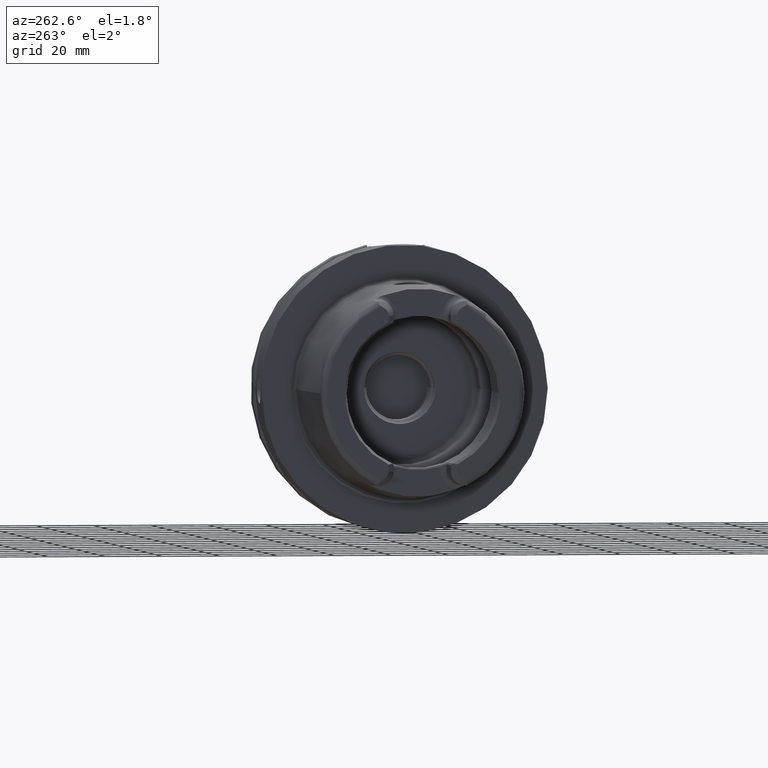
[diagram: clean part render]
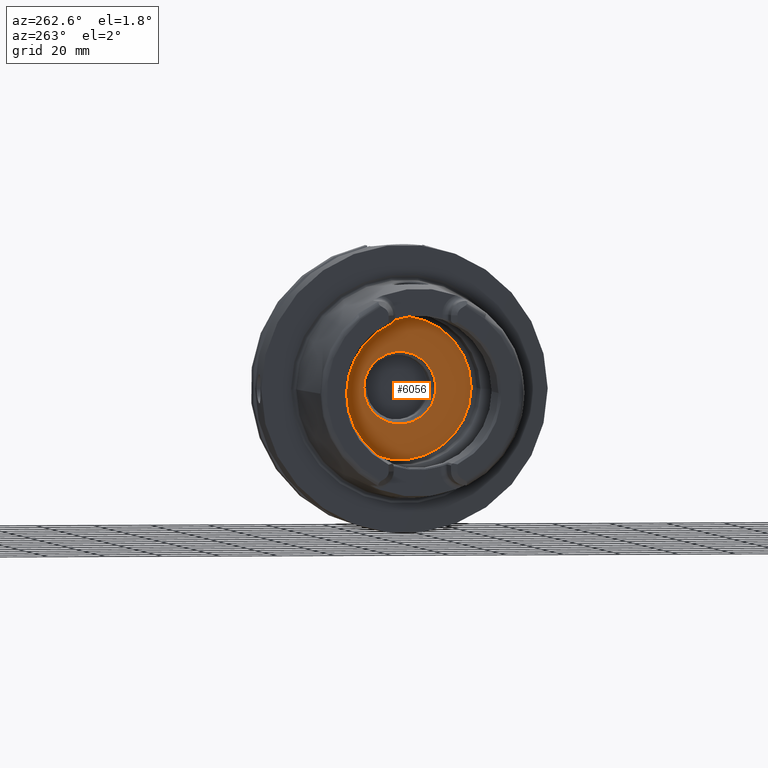
[diagram: same view with one face highlighted and labeled with its STEP entity id]
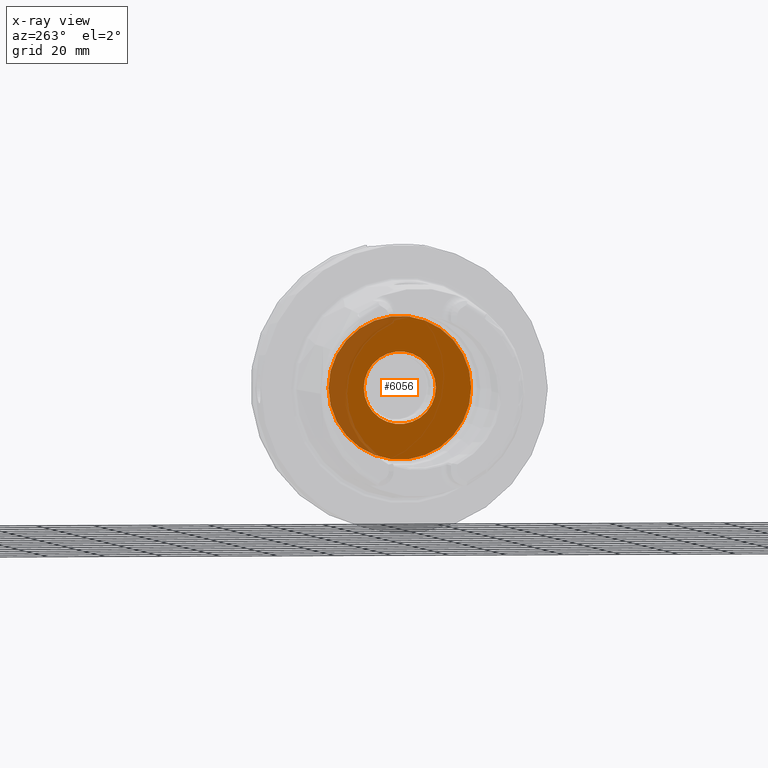
[diagram: x-ray of the same camera — body ghosted, the highlighted face saturated]
A machine part, auxiliary view. The second image highlights one B-rep face of the part: STEP entity #6056.
The next image is the same camera in x-ray: the body ghosted, the highlighted face saturated — about 20% of this face is hidden behind the body in this view.
In plain terms, the highlighted planar face has unit normal (1, 0, 0).
Its self-contained STEP definition (entity closure, byte-faithful):
#2346=CARTESIAN_POINT('',(1.25E1,0.E0,0.E0));
#2347=DIRECTION('',(1.E0,0.E0,0.E0));
#2348=DIRECTION('',(0.E0,1.E0,0.E0));
#2349=AXIS2_PLACEMENT_3D('',#2346,#2347,#2348);
#2356=CARTESIAN_POINT('',(1.25E1,0.E0,0.E0));
#2357=DIRECTION('',(-1.E0,0.E0,0.E0));
#2358=DIRECTION('',(0.E0,1.E0,0.E0));
#2359=AXIS2_PLACEMENT_3D('',#2356,#2357,#2358);
#2366=CARTESIAN_POINT('',(1.25E1,0.E0,0.E0));
#2367=DIRECTION('',(1.E0,0.E0,0.E0));
#2368=DIRECTION('',(0.E0,-1.E0,0.E0));
#2369=AXIS2_PLACEMENT_3D('',#2366,#2367,#2368);
#2371=CARTESIAN_POINT('',(1.25E1,0.E0,0.E0));
#2372=DIRECTION('',(1.E0,0.E0,0.E0));
#2373=DIRECTION('',(0.E0,1.E0,0.E0));
#2374=AXIS2_PLACEMENT_3D('',#2371,#2372,#2373);
#2811=CARTESIAN_POINT('',(1.25E1,2.49E1,0.E0));
#2813=VERTEX_POINT('',#2811);
#2815=CARTESIAN_POINT('',(1.25E1,-2.49E1,0.E0));
#2817=VERTEX_POINT('',#2815);
#3196=CARTESIAN_POINT('',(1.25E1,-1.25665E1,0.E0));
#3197=CARTESIAN_POINT('',(1.25E1,1.25665E1,0.E0));
#3198=VERTEX_POINT('',#3196);
#3199=VERTEX_POINT('',#3197);
#6041=CARTESIAN_POINT('',(1.25E1,0.E0,0.E0));
#6042=DIRECTION('',(1.E0,0.E0,0.E0));
#6043=DIRECTION('',(0.E0,-1.E0,0.E0));
#6044=AXIS2_PLACEMENT_3D('',#6041,#6042,#6043);
#6045=PLANE('',#6044);
#6046=ORIENTED_EDGE('',*,*,#6023,.T.);
#6047=ORIENTED_EDGE('',*,*,#6034,.F.);
#6048=EDGE_LOOP('',(#6046,#6047));
#6049=FACE_OUTER_BOUND('',#6048,.F.);
#6051=ORIENTED_EDGE('',*,*,#6050,.F.);
#6053=ORIENTED_EDGE('',*,*,#6052,.F.);
#6054=EDGE_LOOP('',(#6051,#6053));
#6055=FACE_BOUND('',#6054,.F.);
#6056=ADVANCED_FACE('',(#6049,#6055),#6045,.F.);
#2350=CIRCLE('',#2349,2.49E1);
#2360=CIRCLE('',#2359,2.49E1);
#2370=CIRCLE('',#2369,1.25665E1);
#2375=CIRCLE('',#2374,1.25665E1);
#6023=EDGE_CURVE('',#2813,#2817,#2350,.T.);
#6034=EDGE_CURVE('',#2813,#2817,#2360,.T.);
#6050=EDGE_CURVE('',#3198,#3199,#2370,.T.);
#6052=EDGE_CURVE('',#3199,#3198,#2375,.T.);